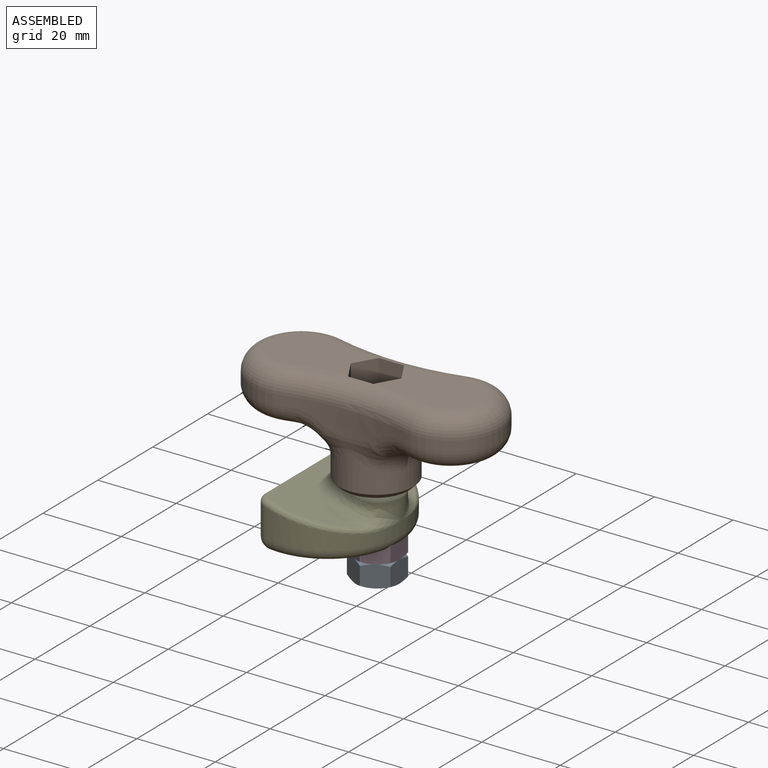
[diagram: assembled view]
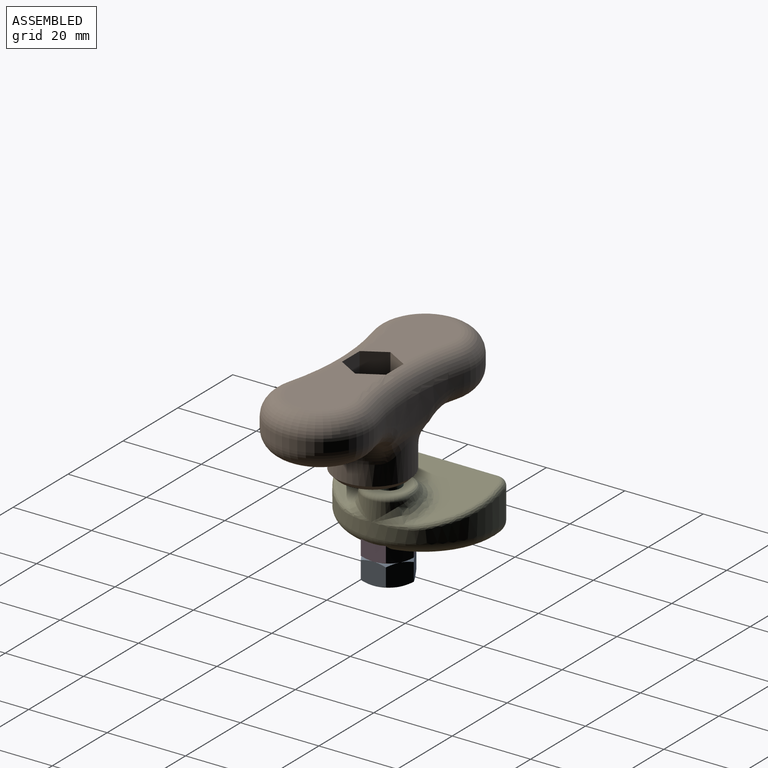
[diagram: assembled view, second angle]
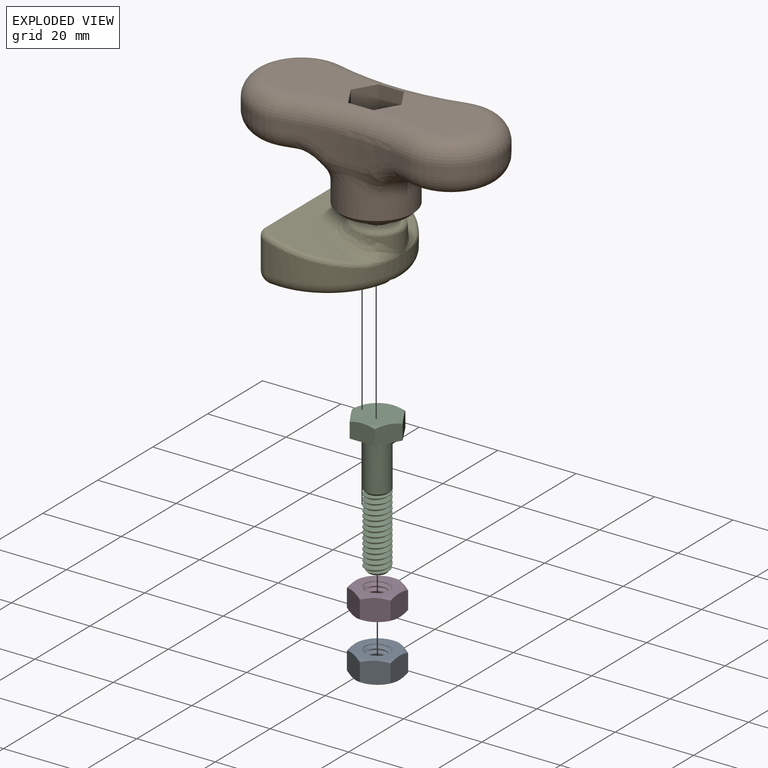
[diagram: exploded view]
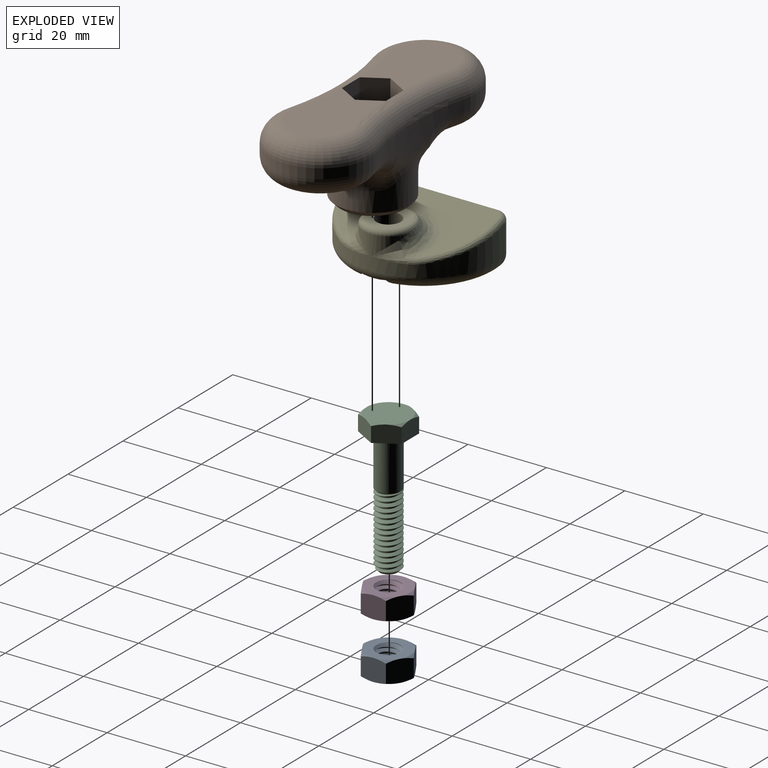
[diagram: exploded view, second angle]
ASSEMBLY  parts=5 mates=4
PART A: 39 faces, bbox 13.4x13.4x7 mm
  f0: cone r=0mm half-angle=60deg, axis (0,0,-1), area 3mm2, adj f6,f7,f8
  f1: cone r=0mm half-angle=60deg, axis (0,0,-1), area 3mm2, adj f6,f8,f9
  f2: cone r=0mm half-angle=60deg, axis (0,0,-1), area 3mm2, adj f6,f9,f10
  f3: cone r=0mm half-angle=60deg, axis (0,0,-1), area 3mm2, adj f6,f10,f11
  f4: cone r=0mm half-angle=60deg, axis (0,0,-1), area 3mm2, adj f6,f11,f12
  f5: cone r=0mm half-angle=60deg, axis (0,0,-1), area 3mm2, adj f6,f7,f12
  f6: plane 11.11x11.11mm, normal (0,0,1), area 65.3mm2, adj f0,f1,f2,f3,f4,f5,f13,f14
  f7: plane 6.08x6.08mm, normal (-0.5,0.87,0), area 33.5mm2, adj f0,f5,f8,f12,f26,f27
  f8: plane 6.94x6.08mm, normal (-1,0,0), area 33.5mm2, adj f0,f1,f7,f9,f27,f28
  f9: plane 6.08x6.08mm, normal (-0.5,-0.87,0), area 33.5mm2, adj f1,f2,f8,f10,f28,f29
  f10: plane 6.08x6.08mm, normal (0.5,-0.87,0), area 33.5mm2, adj f2,f3,f9,f11,f29,f30
  f11: plane 6.94x6.08mm, normal (1,0,0), area 33.5mm2, adj f3,f4,f10,f12,f30,f31
  f12: plane 6.08x6.08mm, normal (0.5,0.87,0), area 33.5mm2, adj f4,f5,f7,f11,f26,f31
  f13: cylinder r=3.17mm len=2.25mm, axis (0,0,-1), area 0.2mm2, adj f6,f25,f33
  f14: cone r=0mm half-angle=45deg, axis (0,0,1), area 0.7mm2, adj f6,f15,f35
  f15: cone r=0mm half-angle=45deg, axis (0,0,1), area 5.2mm2, adj f6,f14,f16,f35
  f16: cone r=0mm half-angle=45deg, axis (0,0,1), area 4.5mm2, adj f6,f15,f17,f33,f35
  f17: cylinder r=2.35mm len=4.7mm, axis (0,0,-1), area 7.4mm2, adj f16,f33,f34,f35
  f18: cylinder r=3.17mm len=6.35mm, axis (0,0,-1), area 1.6mm2, adj f19,f32,f33,f35
  f19: cylinder r=3.17mm len=6.35mm, axis (0,0,-1), area 1.6mm2, adj f18,f20,f33,f35
  f20: cylinder r=3.17mm len=6.35mm, axis (0,0,-1), area 1.6mm2, adj f19,f21,f33,f35
  f21: cylinder r=3.17mm len=6.35mm, axis (0,0,-1), area 1.6mm2, adj f20,f22,f33,f35
  f22: cylinder r=3.17mm len=6.35mm, axis (0,0,-1), area 1.6mm2, adj f21,f23,f33,f35
  f23: cylinder r=3.17mm len=6.35mm, axis (0,0,-1), area 1.6mm2, adj f22,f24,f33,f35
  f24: cylinder r=3.17mm len=6.35mm, axis (0,0,-1), area 1.6mm2, adj f23,f25,f33,f35
  f25: cylinder r=3.17mm len=6.35mm, axis (0,0,-1), area 1.6mm2, adj f13,f24,f33,f35
  f26: cone r=0mm half-angle=60deg, axis (0,0,1), area 3mm2, adj f7,f12,f36
  f27: cone r=0mm half-angle=60deg, axis (0,0,1), area 3mm2, adj f7,f8,f36
  f28: cone r=0mm half-angle=60deg, axis (0,0,1), area 3mm2, adj f8,f9,f36
  f29: cone r=0mm half-angle=60deg, axis (0,0,1), area 3mm2, adj f9,f10,f36
  f30: cone r=0mm half-angle=60deg, axis (0,0,1), area 3mm2, adj f10,f11,f36
  f31: cone r=0mm half-angle=60deg, axis (0,0,1), area 3mm2, adj f11,f12,f36
  f32: cylinder r=3.17mm len=5.42mm, axis (0,0,-1), area 1mm2, adj f18,f33,f35,f36
  f33: bspline ~6.35x6.35mm, area 62.7mm2, adj f13,f16,f17,f18,f19,f20,f21,f22
  f34: cone r=0mm half-angle=45deg, axis (0,0,-1), area 0.7mm2, adj f17,f33,f35,f38
  f35: bspline ~6.35x6.35mm, area 55.6mm2, adj f14,f15,f16,f17,f18,f19,f20,f21
  f36: plane 11.11x11.11mm, normal (0,0,-1), area 65.3mm2, adj f26,f27,f28,f29,f30,f31,f32,f37
  f37: cone r=0mm half-angle=45deg, axis (0,0,-1), area 2.7mm2, adj f33,f36,f38
  f38: cone r=0mm half-angle=45deg, axis (0,0,-1), area 7mm2, adj f33,f34,f35,f36,f37
PART B: 54 faces, bbox 66x31.6x25.8 mm
  f0: plane 1.15x0.33mm, normal (0,0,1), area 0.2mm2, adj f5,f51,f53
  f1: plane 1x0.58mm, normal (0,0,1), area 0.2mm2, adj f5,f49,f51
  f2: plane 1x0.58mm, normal (0,0,1), area 0.2mm2, adj f5,f48,f49
  f3: plane 1.15x0.33mm, normal (0,0,1), area 0.2mm2, adj f5,f48,f50
  f4: plane 1x0.58mm, normal (0,0,1), area 0.2mm2, adj f5,f52,f53
  f5: cylinder r=3.24mm len=9.53mm, axis (0,0,1), area 193.8mm2, adj f0,f1,f2,f3,f4,f11,f41,f48
  f6: plane 23.23x15.24mm, normal (0,0,1), area 270mm2, adj f7,f8,f39,f43,f44
  f7: torus R=66.31mm, axis (0,0,1), area 259.8mm2, adj f6,f14,f16,f39,f40,f44,f45,f46
  f8: torus R=66.31mm, axis (0,0,1), area 259.8mm2, adj f6,f14,f18,f39,f40,f42,f43,f47
  f9: plane 15.24x12.28mm, normal (0,0,-1), area 145.3mm2, adj f21,f23,f24,f25
  f10: cylinder r=9.53mm len=19.05mm, axis (0,0,1), area 353mm2, adj f12,f19,f20,f21,f22
  f11: plane 16.51x16.51mm, normal (0,0,-1), area 181.1mm2, adj f5,f12
  f12: cone r=9.53mm half-angle=45deg, axis (0,0,1), area 100.3mm2, adj f10,f11
  f13: plane 15.24x12.28mm, normal (0,0,-1), area 145.3mm2, adj f20,f36,f37,f38
  f14: plane 23.23x15.24mm, normal (0,0,1), area 270mm2, adj f7,f8,f40,f46,f47
  f15: cylinder r=12.7mm len=25.4mm, axis (0,0,-1), area 118.2mm2, adj f16,f18,f38,f40
  f16: cylinder r=61.23mm len=31.56mm, axis (0,0,-1), area 140.5mm2, adj f7,f15,f17,f25,f27,f31,f35,f37
  f17: cylinder r=12.7mm len=25.4mm, axis (0,0,-1), area 118.2mm2, adj f16,f18,f23,f39
  f18: cylinder r=61.23mm len=31.56mm, axis (0,0,-1), area 140.5mm2, adj f8,f15,f17,f24,f26,f30,f34,f36
  f19: bspline ~23.75x6.94mm, area 58.3mm2, adj f10,f20,f21,f29,f31,f33
  f20: torus R=15.88mm, axis (0,0,1), area 159.8mm2, adj f10,f13,f19,f22,f34,f35
  f21: torus R=15.88mm, axis (0,0,1), area 159.8mm2, adj f9,f10,f19,f22,f26,f27
  f22: bspline ~23.75x6.94mm, area 58.3mm2, adj f10,f20,f21,f28,f30,f32
  f23: torus R=7.62mm, axis (0,0,1), area 317.2mm2, adj f9,f17,f24,f25
  f24: torus R=66.31mm, axis (0,0,1), area 21.1mm2, adj f9,f18,f23,f26
  f25: torus R=66.31mm, axis (0,0,1), area 21.1mm2, adj f9,f16,f23,f27
  f26: bspline ~11.71x7.44mm, area 50.8mm2, adj f18,f21,f24,f28
  f27: bspline ~11.34x7.65mm, area 50.8mm2, adj f16,f21,f25,f29
  f28: bspline ~3.93x2.49mm, area 1.8mm2, adj f22,f26,f30
  f29: bspline ~3.93x2.49mm, area 1.9mm2, adj f19,f27,f31
  f30: bspline ~13.69x3.38mm, area 28.1mm2, adj f18,f22,f28,f32
  f31: bspline ~13.69x3.38mm, area 28.1mm2, adj f16,f19,f29,f33
  f32: bspline ~3.93x2.49mm, area 2.6mm2, adj f22,f30,f34
  f33: bspline ~3.93x2.49mm, area 2.6mm2, adj f19,f31,f35
  f34: bspline ~11.71x7.44mm, area 50.8mm2, adj f18,f20,f32,f36
  f35: bspline ~11.34x7.65mm, area 50.8mm2, adj f16,f20,f33,f37
  f36: torus R=66.31mm, axis (0,0,1), area 21.1mm2, adj f13,f18,f34,f38
  f37: torus R=66.31mm, axis (0,0,1), area 21.1mm2, adj f13,f16,f35,f38
  f38: torus R=7.62mm, axis (0,0,1), area 317.2mm2, adj f13,f15,f36,f37
  f39: torus R=7.62mm, axis (0,0,1), area 317.2mm2, adj f6,f7,f8,f17
  f40: torus R=7.62mm, axis (0,0,1), area 317.2mm2, adj f7,f8,f14,f15
  f41: plane 1x0.58mm, normal (0,0,1), area 0.2mm2, adj f5,f50,f52
  f42: plane 13.48x6.61mm, normal (0,-1,0), area 85.9mm2, adj f8,f43,f47,f52
  f43: plane 13.34x5.59mm, normal (0.87,-0.5,0), area 86mm2, adj f6,f8,f42,f44,f50
  f44: plane 13.34x5.59mm, normal (0.87,0.5,0), area 86mm2, adj f6,f7,f43,f45,f48
  f45: plane 13.48x6.61mm, normal (0,1,0), area 85.9mm2, adj f7,f44,f46,f49
  f46: plane 13.34x5.59mm, normal (-0.87,0.5,0), area 86mm2, adj f7,f14,f45,f47,f51
  f47: plane 13.34x5.59mm, normal (-0.87,-0.5,0), area 86mm2, adj f8,f14,f42,f46,f53
  f48: plane 5.97x5.07mm, normal (0.61,0.35,0.71), area 17.5mm2, adj f2,f3,f5,f44,f49,f50
  f49: plane 6.83x2.92mm, normal (0,0.71,0.71), area 17.5mm2, adj f1,f2,f5,f45,f48,f51
  f50: plane 5.97x5.07mm, normal (0.61,-0.35,0.71), area 17.5mm2, adj f3,f5,f41,f43,f48,f52
  f51: plane 5.97x5.07mm, normal (-0.61,0.35,0.71), area 17.5mm2, adj f0,f1,f5,f46,f49,f53
  f52: plane 6.83x2.92mm, normal (0,-0.71,0.71), area 17.5mm2, adj f4,f5,f41,f42,f50,f53
  f53: plane 5.97x5.07mm, normal (-0.61,-0.35,0.71), area 17.5mm2, adj f0,f4,f5,f47,f51,f52
PART C: 54 faces, bbox 37.1x13.4x13.4 mm
  f0: plane 11.11x11.11mm, normal (-1,0,0), area 97mm2, adj f1,f2,f3,f4,f5,f6
  f1: cone r=0mm half-angle=60deg, axis (1,0,0), area 3mm2, adj f0,f7,f8
  f2: cone r=0mm half-angle=60deg, axis (1,0,0), area 3mm2, adj f0,f8,f9
  f3: cone r=0mm half-angle=60deg, axis (1,0,0), area 3mm2, adj f0,f9,f10
  f4: cone r=0mm half-angle=60deg, axis (1,0,0), area 3mm2, adj f0,f10,f11
  f5: cone r=0mm half-angle=60deg, axis (1,0,0), area 3mm2, adj f0,f7,f12
  f6: cone r=0mm half-angle=60deg, axis (1,0,0), area 3mm2, adj f0,f11,f12
  f7: plane 6.08x4.89mm, normal (0,0.87,0.5), area 26.9mm2, adj f1,f5,f8,f12,f13
  f8: plane 6.08x4.89mm, normal (0,0.87,-0.5), area 26.9mm2, adj f1,f2,f7,f9,f13
  f9: plane 6.94x4.89mm, normal (0,0,-1), area 26.9mm2, adj f2,f3,f8,f10,f13
  f10: plane 6.08x4.89mm, normal (0,-0.87,-0.5), area 26.9mm2, adj f3,f4,f9,f11,f13
  f11: plane 6.08x4.89mm, normal (0,-0.87,0.5), area 26.9mm2, adj f4,f6,f10,f12,f13
  f12: plane 6.94x4.89mm, normal (0,0,1), area 26.9mm2, adj f5,f6,f7,f11,f13
  f13: plane 12.83x11.11mm, normal (1,0,0), area 75.3mm2, adj f7,f8,f9,f10,f11,f12,f15,f45
  f14: plane 4.45x4.45mm, normal (1,0,0), area 15.5mm2, adj f47,f48
  f15: cylinder r=3.17mm len=12.7mm, axis (1,0,0), area 126.7mm2, adj f13,f45,f46,f51
  f16: cylinder r=3.17mm len=2.25mm, axis (1,0,0), area 0.2mm2, adj f17,f48,f52
  f17: cylinder r=3.17mm len=6.35mm, axis (1,0,0), area 1.6mm2, adj f16,f18,f50,f52
  f18: cylinder r=3.17mm len=6.35mm, axis (1,0,0), area 1.6mm2, adj f17,f19,f50,f52
  f19: cylinder r=3.17mm len=6.35mm, axis (1,0,0), area 1.6mm2, adj f18,f20,f50,f52
  f20: cylinder r=3.17mm len=6.35mm, axis (1,0,0), area 1.6mm2, adj f19,f21,f50,f52
  f21: cylinder r=3.17mm len=6.35mm, axis (1,0,0), area 1.6mm2, adj f20,f22,f50,f52
  f22: cylinder r=3.17mm len=6.35mm, axis (1,0,0), area 1.6mm2, adj f21,f23,f50,f52
  f23: cylinder r=3.17mm len=6.35mm, axis (1,0,0), area 1.6mm2, adj f22,f24,f50,f52
  f24: cylinder r=3.17mm len=6.35mm, axis (1,0,0), area 1.6mm2, adj f23,f25,f50,f52
  f25: cylinder r=3.17mm len=6.35mm, axis (1,0,0), area 1.6mm2, adj f24,f26,f50,f52
  f26: cylinder r=3.17mm len=6.35mm, axis (1,0,0), area 1.6mm2, adj f25,f27,f50,f52
  f27: cylinder r=3.17mm len=6.35mm, axis (1,0,0), area 1.6mm2, adj f26,f28,f50,f52
  f28: cylinder r=3.17mm len=6.35mm, axis (1,0,0), area 1.6mm2, adj f27,f29,f50,f52
  f29: cylinder r=3.17mm len=6.35mm, axis (1,0,0), area 1.6mm2, adj f28,f30,f50,f52
  f30: cylinder r=3.17mm len=6.35mm, axis (1,0,0), area 1.6mm2, adj f29,f31,f50,f52
  f31: cylinder r=3.17mm len=6.35mm, axis (1,0,0), area 1.6mm2, adj f30,f32,f50,f52
  f32: cylinder r=3.17mm len=6.35mm, axis (1,0,0), area 1.6mm2, adj f31,f33,f50,f52
  f33: cylinder r=3.17mm len=6.35mm, axis (1,0,0), area 1.6mm2, adj f32,f34,f50,f52
  f34: cylinder r=3.17mm len=6.35mm, axis (1,0,0), area 1.6mm2, adj f33,f35,f50,f52
  f35: cylinder r=3.17mm len=6.35mm, axis (1,0,0), area 1.6mm2, adj f34,f36,f50,f52
  f36: cylinder r=3.17mm len=6.35mm, axis (1,0,0), area 1.6mm2, adj f35,f37,f50,f52
  f37: cylinder r=3.17mm len=6.35mm, axis (1,0,0), area 1.6mm2, adj f36,f38,f50,f52
  f38: cylinder r=3.17mm len=6.35mm, axis (1,0,0), area 1.6mm2, adj f37,f39,f50,f52
  f39: cylinder r=3.17mm len=6.35mm, axis (1,0,0), area 1.6mm2, adj f38,f40,f50,f52
  f40: cylinder r=3.17mm len=6.35mm, axis (1,0,0), area 1.6mm2, adj f39,f41,f50,f52
  f41: cylinder r=3.17mm len=6.35mm, axis (1,0,0), area 1.6mm2, adj f40,f42,f50,f52
  f42: cylinder r=3.17mm len=6.35mm, axis (1,0,0), area 1.6mm2, adj f41,f43,f50,f52
  f43: cylinder r=3.17mm len=6.35mm, axis (1,0,0), area 1.6mm2, adj f42,f44,f50,f52
  f44: cylinder r=3.17mm len=6.35mm, axis (1,0,0), area 1.6mm2, adj f43,f45,f50,f52
  f45: cylinder r=3.17mm len=13.02mm, axis (1,0,0), area 127.3mm2, adj f13,f15,f44,f46,f50,f51,f52
  f46: cone r=0mm half-angle=45deg, axis (-1,0,0), area 1.6mm2, adj f15,f45,f51,f52
  f47: cone r=0mm half-angle=45deg, axis (-1,0,0), area 4.9mm2, adj f14,f48,f52
  f48: cone r=0mm half-angle=45deg, axis (-1,0,0), area 7.4mm2, adj f14,f16,f47,f49,f50,f52
  f49: cylinder r=2.35mm len=18.1mm, axis (1,0,0), area 43.2mm2, adj f48,f50,f52,f53
  f50: bspline ~18.92x6.34mm, area 236.3mm2, adj f17,f18,f19,f20,f21,f22,f23,f24
  f51: cone r=0mm half-angle=45deg, axis (-1,0,0), area 6.5mm2, adj f15,f45,f46,f52,f53
  f52: bspline ~19.99x6.35mm, area 234.9mm2, adj f16,f17,f18,f19,f20,f21,f22,f23
  f53: cone r=0mm half-angle=45deg, axis (-1,0,0), area 2.5mm2, adj f49,f50,f51,f52
PART D: same geometry as A
PART E: 38 faces, bbox 26.8x41.7x13.2 mm
  f0: plane 31.75x17.26mm, normal (0,0,-1), area 380.2mm2, adj f14,f17,f32,f33,f34,f35,f36
  f1: cylinder r=3.11mm len=10.16mm, axis (0,0,1), area 198.6mm2, adj f4,f31
  f2: cylinder r=19.05mm len=38.1mm, axis (0,0,1), area 289.9mm2, adj f12,f13,f17,f18,f19,f20,f24,f25
  f3: plane 35.56x19.13mm, normal (0.25,0,0.97), area 389.1mm2, adj f8,f9,f10,f20,f21,f22,f23,f24
  f4: plane 10.74x10.23mm, normal (0,0,1), area 56.7mm2, adj f1,f27,f28,f29,f30
  f5: cylinder r=6.35mm len=12.46mm, axis (0,0,1), area 40.7mm2, adj f7,f8,f10,f11,f28
  f6: plane 31.44x7.88mm, normal (-1,0,0), area 247.9mm2, adj f12,f13,f14,f22
  f7: bspline ~9.33x4.39mm, area 10.8mm2, adj f5,f8,f18
  f8: bspline ~8.12x5.8mm, area 37.2mm2, adj f3,f5,f7,f9,f19,f27
  f9: bspline ~20.06x9.87mm, area 94.8mm2, adj f3,f8,f10,f29
  f10: bspline ~8.12x5.8mm, area 37.2mm2, adj f3,f5,f9,f11,f25,f30
  f11: bspline ~9.33x4.39mm, area 11mm2, adj f5,f10,f26
  f12: cylinder r=3.17mm len=7.88mm, axis (0,0,1), area 34.9mm2, adj f2,f6,f16,f23
  f13: cylinder r=3.17mm len=7.88mm, axis (0,0,1), area 34.9mm2, adj f2,f6,f15,f21
  f14: cylinder r=3.17mm len=31.44mm, axis (0,1,0), area 156.8mm2, adj f0,f6,f15,f16
  f15: sphere r=3.17mm, area 14.4mm2, adj f13,f14,f17
  f16: sphere r=3.17mm, area 20.7mm2, adj f12,f14,f17
  f17: torus R=15.88mm, axis (0,0,1), area 280.9mm2, adj f0,f2,f15,f16,f32,f36,f37
  f18: bspline ~8.65x2.82mm, area 4mm2, adj f2,f7,f19
  f19: bspline ~5.14x3.4mm, area 3.3mm2, adj f2,f8,f18,f20
  f20: bspline ~22.7x10.84mm, area 40.7mm2, adj f2,f3,f19,f21
  f21: bspline ~3.33x3.2mm, area 8.9mm2, adj f3,f13,f20,f22
  f22: cylinder r=1.27mm len=31.44mm, axis (0,1,0), area 72.9mm2, adj f3,f6,f21,f23
  f23: bspline ~3.33x3.2mm, area 8.9mm2, adj f3,f12,f22,f24
  f24: bspline ~22.7x10.84mm, area 40.7mm2, adj f2,f3,f23,f25
  f25: bspline ~5.14x3.4mm, area 3.3mm2, adj f2,f10,f24,f26
  f26: bspline ~8.65x2.82mm, area 5.9mm2, adj f2,f11,f25
  f27: bspline ~6.52x1.89mm, area 5.8mm2, adj f4,f8,f28,f29
  f28: torus R=5.08mm, axis (0,0,1), area 32.4mm2, adj f4,f5,f27,f30
  f29: bspline ~12.47x5.7mm, area 20.5mm2, adj f4,f9,f27,f30
  f30: bspline ~6.52x1.89mm, area 5.8mm2, adj f4,f10,f28,f29
  f31: plane 12.76x11.05mm, normal (0,0,-1), area 75.3mm2, adj f1,f32,f33,f34,f35,f36,f37
  f32: plane 6x3.67mm, normal (-0.5,0.87,0), area 14.7mm2, adj f0,f17,f31,f33,f37
  f33: plane 5.52x3.19mm, normal (0.5,0.87,0), area 16.2mm2, adj f0,f31,f32,f34
  f34: plane 6.38x2.54mm, normal (1,0,0), area 16.2mm2, adj f0,f31,f33,f35
  f35: plane 5.52x3.19mm, normal (0.5,-0.87,0), area 16.2mm2, adj f0,f31,f34,f36
  f36: plane 6x3.67mm, normal (-0.5,-0.87,0), area 14.7mm2, adj f0,f17,f31,f35,f37
  f37: plane 6.38x1.5mm, normal (-1,0,0), area 8.9mm2, adj f17,f31,f32,f36
PLACE A t=(4.38,12.84,-18.54)mm
PLACE B t=(6.04,9.97,15.1)mm
PLACE C rot(axis=(-0.69,0.19,0.69),158.9deg) t=(4.38,12.84,-1.76)mm
PLACE D rot(axis=(0,0,1),0deg) t=(4.38,12.84,-12.98)mm
PLACE E t=(-8.32,12.84,-0.04)mm
MATE cylindrical C.f1 <-> E.f1  axis (0,0,-1) through (4.38,12.84,-19.82)mm
MATE revolute B.f41 <-> C.f1  axis (0,0,1) through (4.38,12.84,11.93)mm
MATE fastened D.f0 <-> A.f0  axis (0,0,-1) through (4.38,12.84,-15.76)mm
MATE fastened D.f0 <-> E.f1  axis (0,0,1) through (4.38,12.84,-10.2)mm
